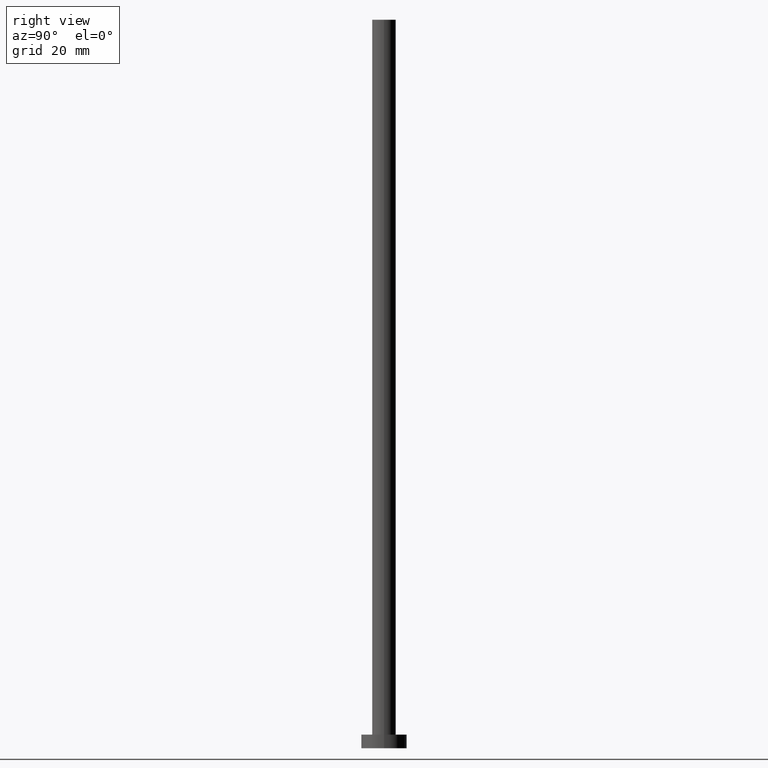
[diagram: clean part render]
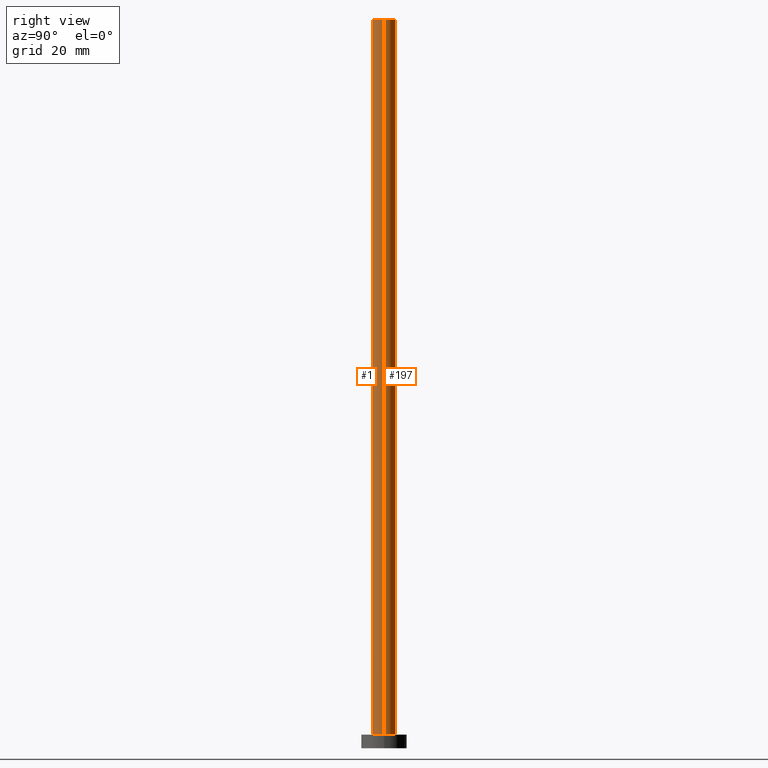
[diagram: same view with one multi-face feature highlighted, each face labeled with its STEP entity id]
A machine part, right view. The highlighted faces form ONE feature: a constant-radius fillet chain: 2 tangent blend faces with common blend radius 2.6 mm. The faces share edges in the B-rep.
Their STEP definitions:
[1] entity #1 (Cylinder):
#1 = ADVANCED_FACE ( 'NONE', ( #232 ), #79, .T. ) ;
#4 = VECTOR ( 'NONE', #41, 1000.000000000000000 ) ;
#5 = EDGE_CURVE ( 'NONE', #149, #227, #198, .T. ) ;
#13 = DIRECTION ( 'NONE',  ( -1.000000000000000000, 0.000000000000000000, 0.000000000000000000 ) ) ;
#16 = ORIENTED_EDGE ( 'NONE', *, *, #5, .T. ) ;
#22 = EDGE_CURVE ( 'NONE', #188, #245, #192, .T. ) ;
#35 = ORIENTED_EDGE ( 'NONE', *, *, #100, .F. ) ;
#39 = EDGE_CURVE ( 'NONE', #188, #149, #175, .T. ) ;
#41 = DIRECTION ( 'NONE',  ( -0.000000000000000000, -0.000000000000000000, -1.000000000000000000 ) ) ;
#47 = VECTOR ( 'NONE', #180, 1000.000000000000000 ) ;
#53 = ORIENTED_EDGE ( 'NONE', *, *, #39, .T. ) ;
#55 = DIRECTION ( 'NONE',  ( 0.000000000000000000, 0.000000000000000000, 1.000000000000000000 ) ) ;
#57 = CARTESIAN_POINT ( 'NONE',  ( -2.600000000000000089, 0.000000000000000000, 160.0000000000000000 ) ) ;
#69 = CARTESIAN_POINT ( 'NONE',  ( 2.600000000000000089, 3.184081677783118191E-16, 3.000000000000000000 ) ) ;
#76 = CARTESIAN_POINT ( 'NONE',  ( -2.600000000000000089, 0.000000000000000000, 160.0000000000000000 ) ) ;
#79 = CYLINDRICAL_SURFACE ( 'NONE', #210, 2.600000000000000089 ) ;
#80 = LINE ( 'NONE', #241, #4 ) ;
#92 = EDGE_LOOP ( 'NONE', ( #35, #158, #53, #16 ) ) ;
#100 = EDGE_CURVE ( 'NONE', #245, #227, #80, .T. ) ;
#103 = AXIS2_PLACEMENT_3D ( 'NONE', #152, #249, #171 ) ;
#109 = CARTESIAN_POINT ( 'NONE',  ( 2.600000000000000089, 3.184081677783118191E-16, 160.0000000000000000 ) ) ;
#149 = VERTEX_POINT ( 'NONE', #219 ) ;
#152 = CARTESIAN_POINT ( 'NONE',  ( 0.000000000000000000, 0.000000000000000000, 160.0000000000000000 ) ) ;
#158 = ORIENTED_EDGE ( 'NONE', *, *, #22, .F. ) ;
#171 = DIRECTION ( 'NONE',  ( 1.000000000000000000, 0.000000000000000000, 0.000000000000000000 ) ) ;
#173 = CARTESIAN_POINT ( 'NONE',  ( 0.000000000000000000, 0.000000000000000000, 160.0000000000000000 ) ) ;
#175 = LINE ( 'NONE', #76, #47 ) ;
#180 = DIRECTION ( 'NONE',  ( -0.000000000000000000, -0.000000000000000000, -1.000000000000000000 ) ) ;
#188 = VERTEX_POINT ( 'NONE', #57 ) ;
#192 = CIRCLE ( 'NONE', #103, 2.600000000000000089 ) ;
#195 = DIRECTION ( 'NONE',  ( -0.000000000000000000, -0.000000000000000000, -1.000000000000000000 ) ) ;
#198 = CIRCLE ( 'NONE', #201, 2.600000000000000089 ) ;
#201 = AXIS2_PLACEMENT_3D ( 'NONE', #235, #55, #246 ) ;
#210 = AXIS2_PLACEMENT_3D ( 'NONE', #173, #195, #13 ) ;
#219 = CARTESIAN_POINT ( 'NONE',  ( -2.600000000000000089, 0.000000000000000000, 3.000000000000000000 ) ) ;
#227 = VERTEX_POINT ( 'NONE', #69 ) ;
#232 = FACE_OUTER_BOUND ( 'NONE', #92, .T. ) ;
#235 = CARTESIAN_POINT ( 'NONE',  ( 0.000000000000000000, 0.000000000000000000, 3.000000000000000000 ) ) ;
#241 = CARTESIAN_POINT ( 'NONE',  ( 2.600000000000000089, 3.184081677783118191E-16, 160.0000000000000000 ) ) ;
#245 = VERTEX_POINT ( 'NONE', #109 ) ;
#246 = DIRECTION ( 'NONE',  ( 1.000000000000000000, 0.000000000000000000, 0.000000000000000000 ) ) ;
#249 = DIRECTION ( 'NONE',  ( 0.000000000000000000, 0.000000000000000000, 1.000000000000000000 ) ) ;
[2] entity #197 (Cylinder):
#4 = VECTOR ( 'NONE', #41, 1000.000000000000000 ) ;
#28 = ORIENTED_EDGE ( 'NONE', *, *, #181, .T. ) ;
#38 = AXIS2_PLACEMENT_3D ( 'NONE', #130, #200, #87 ) ;
#39 = EDGE_CURVE ( 'NONE', #188, #149, #175, .T. ) ;
#41 = DIRECTION ( 'NONE',  ( -0.000000000000000000, -0.000000000000000000, -1.000000000000000000 ) ) ;
#44 = EDGE_LOOP ( 'NONE', ( #46, #121, #28, #86 ) ) ;
#46 = ORIENTED_EDGE ( 'NONE', *, *, #166, .F. ) ;
#47 = VECTOR ( 'NONE', #180, 1000.000000000000000 ) ;
#57 = CARTESIAN_POINT ( 'NONE',  ( -2.600000000000000089, 0.000000000000000000, 160.0000000000000000 ) ) ;
#66 = CIRCLE ( 'NONE', #208, 2.600000000000000089 ) ;
#69 = CARTESIAN_POINT ( 'NONE',  ( 2.600000000000000089, 3.184081677783118191E-16, 3.000000000000000000 ) ) ;
#76 = CARTESIAN_POINT ( 'NONE',  ( -2.600000000000000089, 0.000000000000000000, 160.0000000000000000 ) ) ;
#80 = LINE ( 'NONE', #241, #4 ) ;
#86 = ORIENTED_EDGE ( 'NONE', *, *, #39, .F. ) ;
#87 = DIRECTION ( 'NONE',  ( -1.000000000000000000, 0.000000000000000000, 0.000000000000000000 ) ) ;
#100 = EDGE_CURVE ( 'NONE', #245, #227, #80, .T. ) ;
#109 = CARTESIAN_POINT ( 'NONE',  ( 2.600000000000000089, 3.184081677783118191E-16, 160.0000000000000000 ) ) ;
#121 = ORIENTED_EDGE ( 'NONE', *, *, #100, .T. ) ;
#126 = DIRECTION ( 'NONE',  ( 0.000000000000000000, 0.000000000000000000, 1.000000000000000000 ) ) ;
#130 = CARTESIAN_POINT ( 'NONE',  ( 0.000000000000000000, 0.000000000000000000, 160.0000000000000000 ) ) ;
#131 = FACE_OUTER_BOUND ( 'NONE', #44, .T. ) ;
#145 = CIRCLE ( 'NONE', #240, 2.600000000000000089 ) ;
#146 = DIRECTION ( 'NONE',  ( 1.000000000000000000, 0.000000000000000000, 0.000000000000000000 ) ) ;
#149 = VERTEX_POINT ( 'NONE', #219 ) ;
#163 = CARTESIAN_POINT ( 'NONE',  ( 0.000000000000000000, 0.000000000000000000, 160.0000000000000000 ) ) ;
#166 = EDGE_CURVE ( 'NONE', #245, #188, #145, .T. ) ;
#175 = LINE ( 'NONE', #76, #47 ) ;
#180 = DIRECTION ( 'NONE',  ( -0.000000000000000000, -0.000000000000000000, -1.000000000000000000 ) ) ;
#181 = EDGE_CURVE ( 'NONE', #227, #149, #66, .T. ) ;
#188 = VERTEX_POINT ( 'NONE', #57 ) ;
#196 = DIRECTION ( 'NONE',  ( 1.000000000000000000, 0.000000000000000000, 0.000000000000000000 ) ) ;
#197 = ADVANCED_FACE ( 'NONE', ( #131 ), #222, .T. ) ;
#200 = DIRECTION ( 'NONE',  ( -0.000000000000000000, -0.000000000000000000, -1.000000000000000000 ) ) ;
#208 = AXIS2_PLACEMENT_3D ( 'NONE', #218, #236, #196 ) ;
#218 = CARTESIAN_POINT ( 'NONE',  ( 0.000000000000000000, 0.000000000000000000, 3.000000000000000000 ) ) ;
#219 = CARTESIAN_POINT ( 'NONE',  ( -2.600000000000000089, 0.000000000000000000, 3.000000000000000000 ) ) ;
#222 = CYLINDRICAL_SURFACE ( 'NONE', #38, 2.600000000000000089 ) ;
#227 = VERTEX_POINT ( 'NONE', #69 ) ;
#236 = DIRECTION ( 'NONE',  ( 0.000000000000000000, 0.000000000000000000, 1.000000000000000000 ) ) ;
#240 = AXIS2_PLACEMENT_3D ( 'NONE', #163, #126, #146 ) ;
#241 = CARTESIAN_POINT ( 'NONE',  ( 2.600000000000000089, 3.184081677783118191E-16, 160.0000000000000000 ) ) ;
#245 = VERTEX_POINT ( 'NONE', #109 ) ;